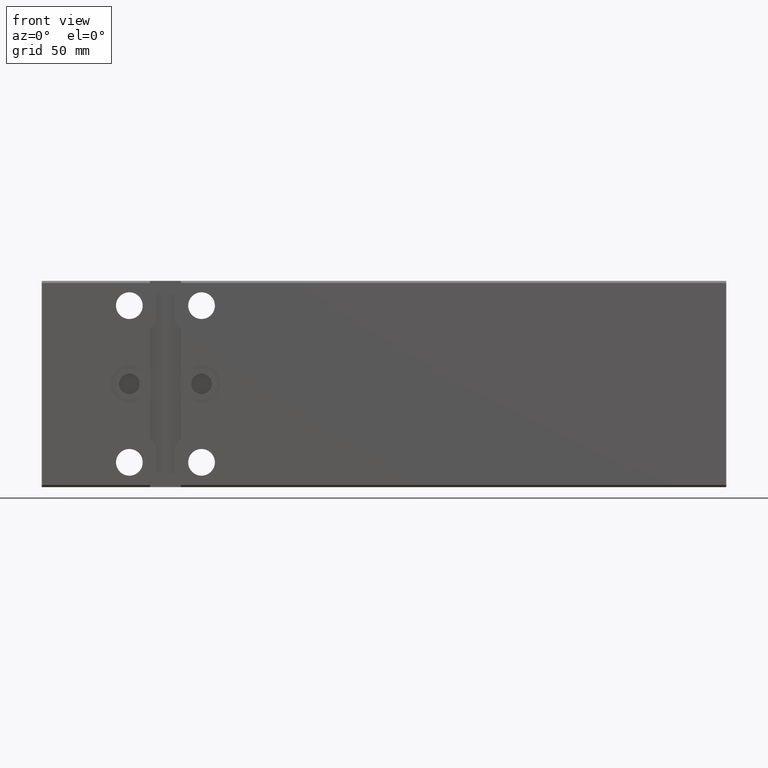
[diagram: clean part render]
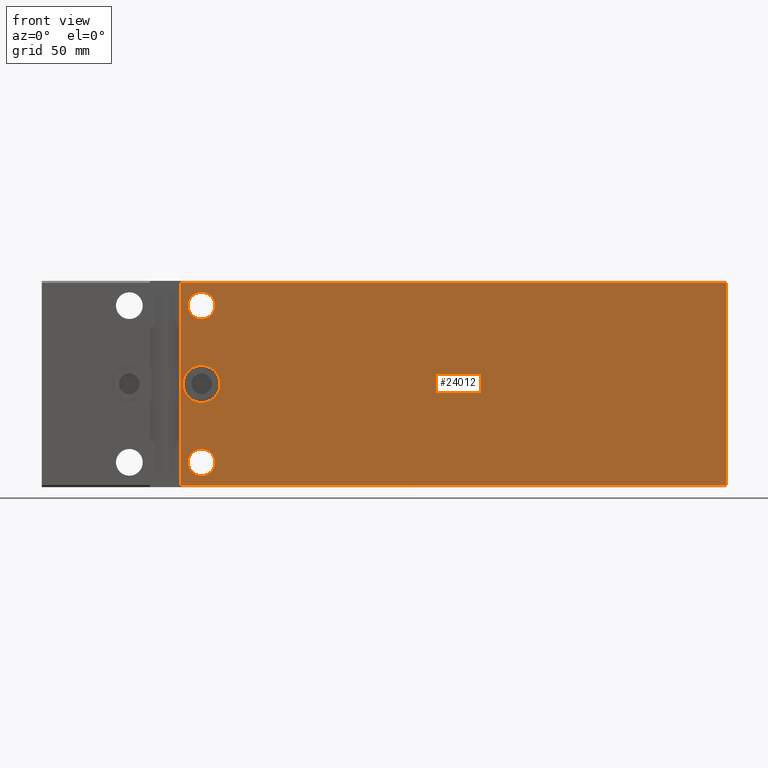
[diagram: same view with one face highlighted and labeled with its STEP entity id]
A machine part, front view. The second image highlights one B-rep face of the part: STEP entity #24012.
In plain terms, the highlighted planar face has unit normal (-0, 1, 0).
Its self-contained STEP definition (entity closure, byte-faithful):
#84 = CARTESIAN_POINT ( 'NONE',  ( 332.0000000000000000, -37.50000000000001421, 48.99999999999998579 ) ) ;
#332 = FACE_BOUND ( 'NONE', #15435, .T. ) ;
#1000 = DIRECTION ( 'NONE',  ( -1.387778780781445922E-16, -0.000000000000000000, 1.000000000000000000 ) ) ;
#1007 = CARTESIAN_POINT ( 'NONE',  ( 332.0000000000000000, -37.50000000000001421, 48.99999999999998579 ) ) ;
#1280 = ORIENTED_EDGE ( 'NONE', *, *, #24283, .F. ) ;
#1385 = CARTESIAN_POINT ( 'NONE',  ( 77.50000000000001421, -37.50000000000001421, -38.00000000000000000 ) ) ;
#1846 = AXIS2_PLACEMENT_3D ( 'NONE', #20880, #30886, #33670 ) ;
#2615 = VERTEX_POINT ( 'NONE', #21507 ) ;
#3091 = VECTOR ( 'NONE', #24571, 1000.000000000000000 ) ;
#3530 = FACE_BOUND ( 'NONE', #40910, .T. ) ;
#3822 = ORIENTED_EDGE ( 'NONE', *, *, #20349, .F. ) ;
#4439 = VECTOR ( 'NONE', #1000, 1000.000000000000000 ) ;
#4472 = EDGE_CURVE ( 'NONE', #20988, #35398, #8420, .T. ) ;
#4611 = VECTOR ( 'NONE', #40542, 1000.000000000000000 ) ;
#4764 = VERTEX_POINT ( 'NONE', #8297 ) ;
#5104 = CARTESIAN_POINT ( 'NONE',  ( 67.50000000000001421, -37.50000000000001421, -48.99999999999997158 ) ) ;
#5365 = CIRCLE ( 'NONE', #33246, 6.499999999999999112 ) ;
#5466 = ORIENTED_EDGE ( 'NONE', *, *, #8059, .T. ) ;
#5491 = VERTEX_POINT ( 'NONE', #29434 ) ;
#7204 = EDGE_CURVE ( 'NONE', #31420, #2615, #17132, .T. ) ;
#8059 = EDGE_CURVE ( 'NONE', #33457, #2615, #37356, .T. ) ;
#8297 = CARTESIAN_POINT ( 'NONE',  ( 77.50000000000001421, -37.50000000000001421, -44.50000000000000000 ) ) ;
#8420 = CIRCLE ( 'NONE', #20620, 8.999999999999996447 ) ;
#9752 = DIRECTION ( 'NONE',  ( 0.000000000000000000, 0.000000000000000000, 1.000000000000000000 ) ) ;
#10104 = DIRECTION ( 'NONE',  ( -0.000000000000000000, 1.000000000000000000, 0.000000000000000000 ) ) ;
#10107 = VECTOR ( 'NONE', #39193, 1000.000000000000000 ) ;
#10185 = ORIENTED_EDGE ( 'NONE', *, *, #4472, .T. ) ;
#10197 = CIRCLE ( 'NONE', #33998, 6.499999999999999112 ) ;
#10836 = ORIENTED_EDGE ( 'NONE', *, *, #28122, .F. ) ;
#10855 = CARTESIAN_POINT ( 'NONE',  ( 77.50000000000002842, -37.50000000000001421, -9.000000000000000000 ) ) ;
#11365 = CARTESIAN_POINT ( 'NONE',  ( 77.50000000000002842, -37.50000000000001421, -2.652630106891487937E-15 ) ) ;
#11550 = CARTESIAN_POINT ( 'NONE',  ( 77.50000000000001421, -37.50000000000001421, -31.50000000000000000 ) ) ;
#11942 = ORIENTED_EDGE ( 'NONE', *, *, #15152, .T. ) ;
#12173 = ORIENTED_EDGE ( 'NONE', *, *, #19457, .T. ) ;
#12632 = VERTEX_POINT ( 'NONE', #21113 ) ;
#13068 = FACE_BOUND ( 'NONE', #27043, .T. ) ;
#13457 = LINE ( 'NONE', #84, #10107 ) ;
#13482 = AXIS2_PLACEMENT_3D ( 'NONE', #1385, #40886, #40478 ) ;
#14266 = CARTESIAN_POINT ( 'NONE',  ( 77.50000000000002842, -37.50000000000001421, 8.999999999999992895 ) ) ;
#14575 = CARTESIAN_POINT ( 'NONE',  ( 67.50000000000000000, -37.50000000000001421, 49.99999999999998579 ) ) ;
#15152 = EDGE_CURVE ( 'NONE', #4764, #22686, #25600, .T. ) ;
#15435 = EDGE_LOOP ( 'NONE', ( #10185, #26550 ) ) ;
#15503 = EDGE_CURVE ( 'NONE', #12632, #31420, #20992, .T. ) ;
#16267 = CARTESIAN_POINT ( 'NONE',  ( 77.50000000000000000, -37.50000000000001421, 44.50000000000000000 ) ) ;
#17132 = LINE ( 'NONE', #14575, #4439 ) ;
#19306 = CARTESIAN_POINT ( 'NONE',  ( 77.50000000000000000, -37.50000000000001421, 38.00000000000000000 ) ) ;
#19457 = EDGE_CURVE ( 'NONE', #22686, #4764, #33877, .T. ) ;
#20349 = EDGE_CURVE ( 'NONE', #5491, #24008, #5365, .T. ) ;
#20620 = AXIS2_PLACEMENT_3D ( 'NONE', #33736, #27129, #34141 ) ;
#20880 = CARTESIAN_POINT ( 'NONE',  ( 77.50000000000001421, -37.50000000000001421, -38.00000000000000000 ) ) ;
#20988 = VERTEX_POINT ( 'NONE', #10855 ) ;
#20992 = LINE ( 'NONE', #40339, #4611 ) ;
#21113 = CARTESIAN_POINT ( 'NONE',  ( 332.0000000000000000, -37.50000000000001421, -49.00000000000000000 ) ) ;
#21507 = CARTESIAN_POINT ( 'NONE',  ( 67.50000000000000000, -37.50000000000001421, 48.99999999999998579 ) ) ;
#22307 = CIRCLE ( 'NONE', #38612, 8.999999999999996447 ) ;
#22486 = DIRECTION ( 'NONE',  ( 0.000000000000000000, -1.000000000000000000, -0.000000000000000000 ) ) ;
#22686 = VERTEX_POINT ( 'NONE', #11550 ) ;
#23076 = DIRECTION ( 'NONE',  ( 0.000000000000000000, -0.000000000000000000, 1.000000000000000000 ) ) ;
#24008 = VERTEX_POINT ( 'NONE', #16267 ) ;
#24012 = ADVANCED_FACE ( 'NONE', ( #332, #13068, #35842, #3530 ), #29464, .F. ) ;
#24283 = EDGE_CURVE ( 'NONE', #33457, #12632, #13457, .T. ) ;
#24571 = DIRECTION ( 'NONE',  ( -1.000000000000000000, -0.000000000000000000, -0.000000000000000000 ) ) ;
#25391 = EDGE_CURVE ( 'NONE', #35398, #20988, #22307, .T. ) ;
#25600 = CIRCLE ( 'NONE', #1846, 6.499999999999999112 ) ;
#26268 = CARTESIAN_POINT ( 'NONE',  ( 332.0000000000000000, -37.50000000000001421, 48.99999999999998579 ) ) ;
#26312 = CARTESIAN_POINT ( 'NONE',  ( 77.50000000000000000, -37.50000000000001421, 38.00000000000000000 ) ) ;
#26550 = ORIENTED_EDGE ( 'NONE', *, *, #25391, .T. ) ;
#26914 = DIRECTION ( 'NONE',  ( 0.000000000000000000, 0.000000000000000000, 1.000000000000000000 ) ) ;
#27043 = EDGE_LOOP ( 'NONE', ( #11942, #12173 ) ) ;
#27129 = DIRECTION ( 'NONE',  ( -0.000000000000000000, 1.000000000000000000, 5.507058653894625853E-17 ) ) ;
#27995 = EDGE_LOOP ( 'NONE', ( #5466, #41822, #28595, #1280 ) ) ;
#28122 = EDGE_CURVE ( 'NONE', #24008, #5491, #10197, .T. ) ;
#28595 = ORIENTED_EDGE ( 'NONE', *, *, #15503, .F. ) ;
#29434 = CARTESIAN_POINT ( 'NONE',  ( 77.50000000000000000, -37.50000000000001421, 31.50000000000000000 ) ) ;
#29464 = PLANE ( 'NONE',  #41980 ) ;
#30886 = DIRECTION ( 'NONE',  ( -0.000000000000000000, 1.000000000000000000, 0.000000000000000000 ) ) ;
#31420 = VERTEX_POINT ( 'NONE', #5104 ) ;
#33246 = AXIS2_PLACEMENT_3D ( 'NONE', #26312, #22486, #39289 ) ;
#33457 = VERTEX_POINT ( 'NONE', #39120 ) ;
#33670 = DIRECTION ( 'NONE',  ( 0.000000000000000000, 0.000000000000000000, 1.000000000000000000 ) ) ;
#33736 = CARTESIAN_POINT ( 'NONE',  ( 77.50000000000002842, -37.50000000000001421, -2.652630106891487937E-15 ) ) ;
#33877 = CIRCLE ( 'NONE', #13482, 6.499999999999999112 ) ;
#33998 = AXIS2_PLACEMENT_3D ( 'NONE', #19306, #39097, #9752 ) ;
#34141 = DIRECTION ( 'NONE',  ( 0.000000000000000000, 0.000000000000000000, 1.000000000000000000 ) ) ;
#35398 = VERTEX_POINT ( 'NONE', #14266 ) ;
#35842 = FACE_OUTER_BOUND ( 'NONE', #27995, .T. ) ;
#37356 = LINE ( 'NONE', #1007, #3091 ) ;
#38612 = AXIS2_PLACEMENT_3D ( 'NONE', #11365, #40090, #26914 ) ;
#39097 = DIRECTION ( 'NONE',  ( 0.000000000000000000, -1.000000000000000000, -0.000000000000000000 ) ) ;
#39120 = CARTESIAN_POINT ( 'NONE',  ( 332.0000000000000000, -37.50000000000001421, 48.99999999999998579 ) ) ;
#39193 = DIRECTION ( 'NONE',  ( 0.000000000000000000, 0.000000000000000000, -1.000000000000000000 ) ) ;
#39289 = DIRECTION ( 'NONE',  ( 0.000000000000000000, 0.000000000000000000, 1.000000000000000000 ) ) ;
#40090 = DIRECTION ( 'NONE',  ( -0.000000000000000000, 1.000000000000000000, 5.507058653894625853E-17 ) ) ;
#40339 = CARTESIAN_POINT ( 'NONE',  ( 332.0000000000000000, -37.50000000000001421, -49.00000000000000000 ) ) ;
#40478 = DIRECTION ( 'NONE',  ( 0.000000000000000000, 0.000000000000000000, 1.000000000000000000 ) ) ;
#40542 = DIRECTION ( 'NONE',  ( -1.000000000000000000, -0.000000000000000000, -0.000000000000000000 ) ) ;
#40886 = DIRECTION ( 'NONE',  ( -0.000000000000000000, 1.000000000000000000, 0.000000000000000000 ) ) ;
#40910 = EDGE_LOOP ( 'NONE', ( #3822, #10836 ) ) ;
#41822 = ORIENTED_EDGE ( 'NONE', *, *, #7204, .F. ) ;
#41980 = AXIS2_PLACEMENT_3D ( 'NONE', #26268, #10104, #23076 ) ;